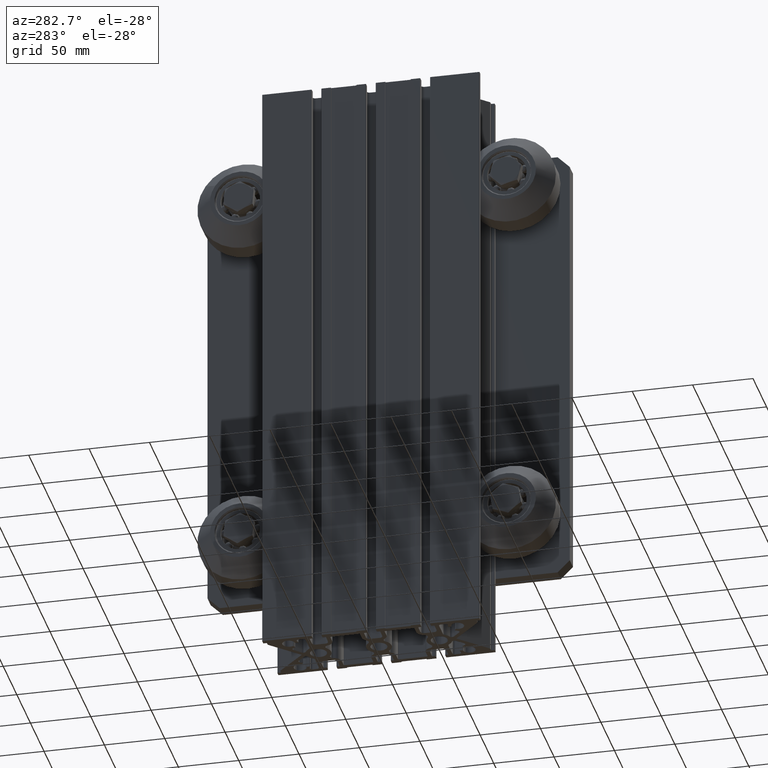
[diagram: clean part render]
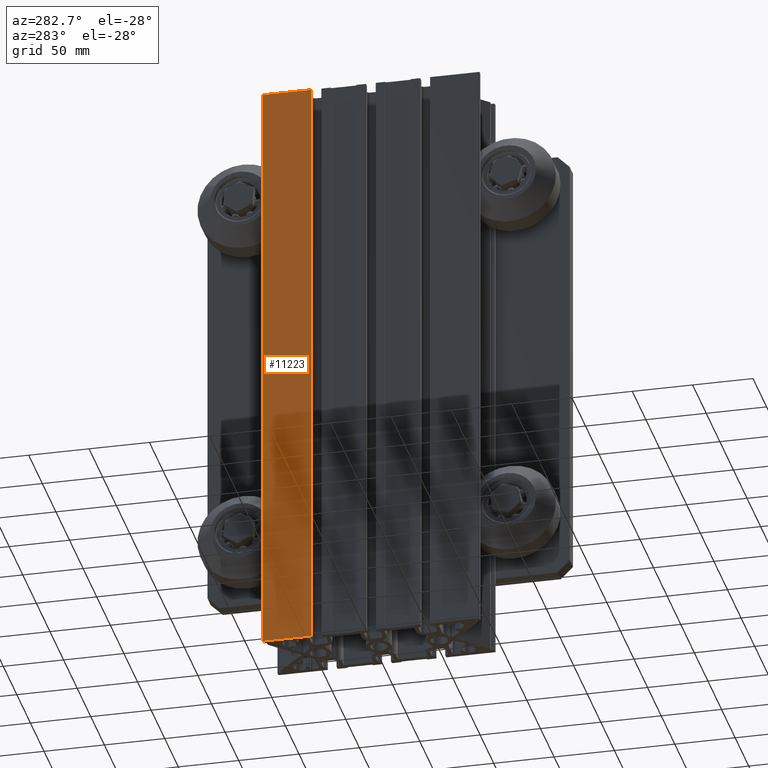
[diagram: same view with one face highlighted and labeled with its STEP entity id]
A machine part, auxiliary view. The second image highlights one B-rep face of the part: STEP entity #11223.
In plain terms, the highlighted planar face has unit normal (-1, -0, 0).
Its self-contained STEP definition (entity closure, byte-faithful):
#611=PLANE('',#12388);
#1079=FACE_OUTER_BOUND('',#1698,.T.);
#1698=EDGE_LOOP('',(#8658,#8659,#8660,#8661));
#2205=LINE('',#16740,#3077);
#2477=LINE('',#17689,#3349);
#2587=LINE('',#17969,#3459);
#2588=LINE('',#17971,#3460);
#3077=VECTOR('',#13318,10.);
#3349=VECTOR('',#14220,10.);
#3459=VECTOR('',#14528,10.);
#3460=VECTOR('',#14531,10.);
#4600=VERTEX_POINT('',#16737);
#4601=VERTEX_POINT('',#16739);
#4962=VERTEX_POINT('',#17686);
#4963=VERTEX_POINT('',#17688);
#5763=EDGE_CURVE('',#4600,#4601,#2205,.T.);
#6237=EDGE_CURVE('',#4962,#4963,#2477,.T.);
#6378=EDGE_CURVE('',#4962,#4601,#2587,.T.);
#6379=EDGE_CURVE('',#4963,#4600,#2588,.T.);
#8658=ORIENTED_EDGE('',*,*,#6378,.T.);
#8659=ORIENTED_EDGE('',*,*,#5763,.F.);
#8660=ORIENTED_EDGE('',*,*,#6379,.F.);
#8661=ORIENTED_EDGE('',*,*,#6237,.F.);
#11223=ADVANCED_FACE('',(#1079),#611,.T.);
#12388=AXIS2_PLACEMENT_3D('',#17970,#14529,#14530);
#13318=DIRECTION('',(2.22044605018001E-16,-1.,0.));
#14220=DIRECTION('',(-1.11022302509E-16,1.,0.));
#14528=DIRECTION('',(0.,0.,1.));
#14529=DIRECTION('center_axis',(-1.,-1.11022302509E-16,0.));
#14530=DIRECTION('ref_axis',(1.11022302509E-16,-1.,0.));
#14531=DIRECTION('',(0.,0.,1.));
#16737=CARTESIAN_POINT('',(-29.9999999923147,89.4999999928157,450.));
#16739=CARTESIAN_POINT('',(-29.9999999923147,49.5000000095635,450.));
#16740=CARTESIAN_POINT('',(-29.9999999923147,89.4999999928157,450.));
#17686=CARTESIAN_POINT('',(-29.9999999923147,49.5000000095635,-50.));
#17688=CARTESIAN_POINT('',(-29.9999999923147,89.4999999928157,-50.));
#17689=CARTESIAN_POINT('',(-29.9999999923147,89.4999999928157,-50.));
#17969=CARTESIAN_POINT('',(-29.9999999923147,49.5000000095635,0.));
#17970=CARTESIAN_POINT('Origin',(-29.9999999923147,89.4999999928157,0.));
#17971=CARTESIAN_POINT('',(-29.9999999923147,89.4999999928157,0.));